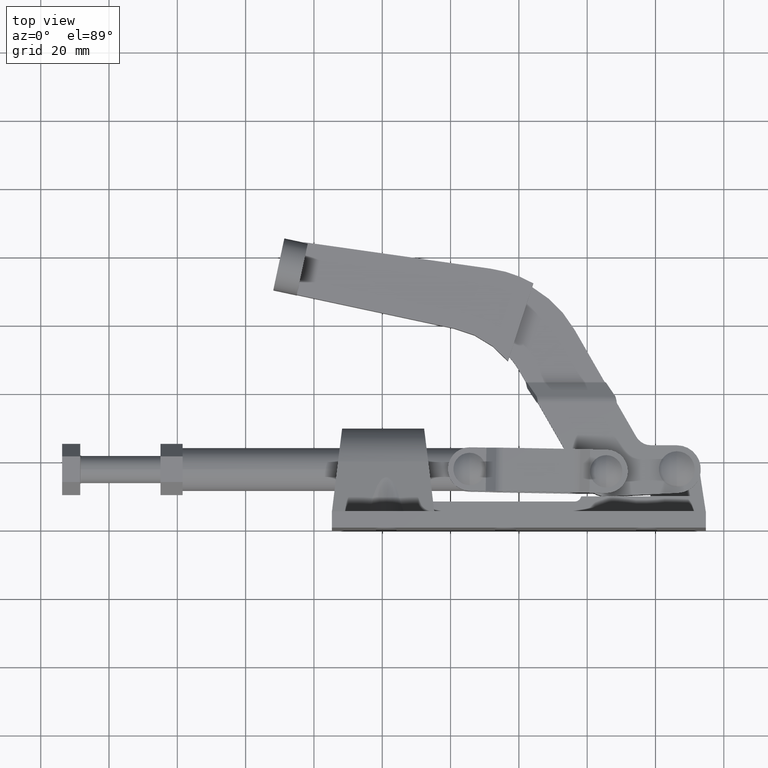
[diagram: clean part render]
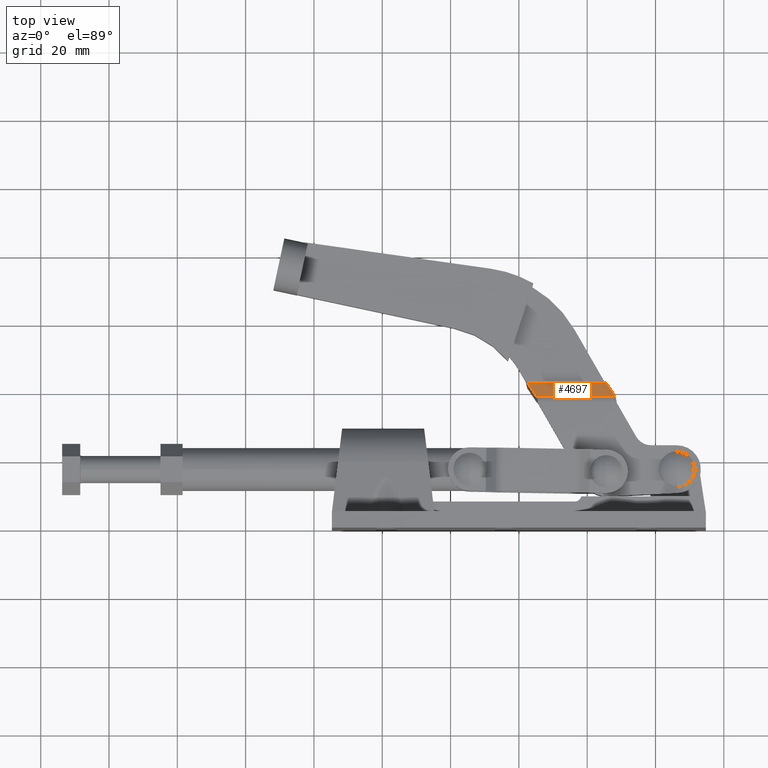
[diagram: same view with one face highlighted and labeled with its STEP entity id]
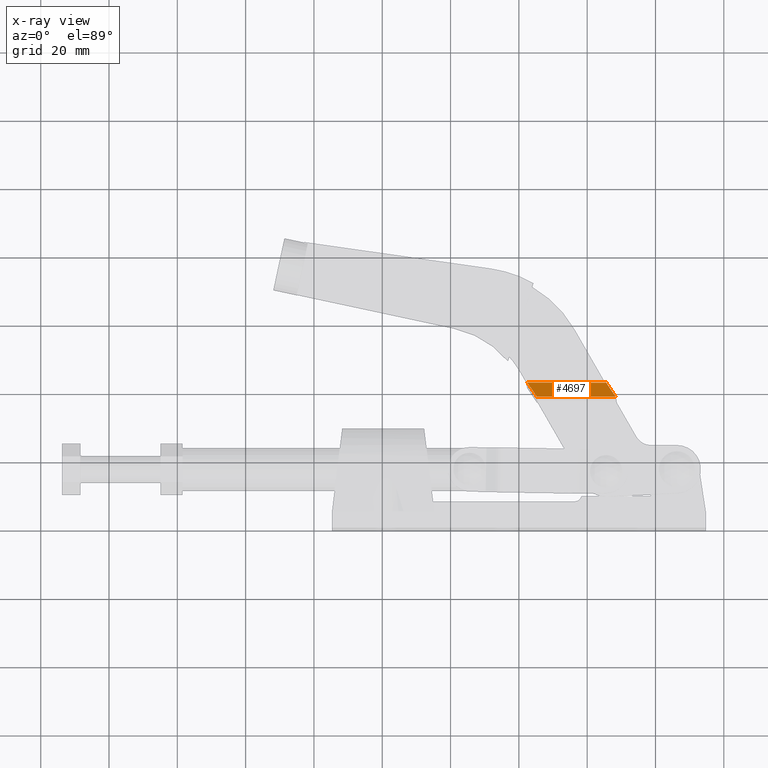
[diagram: x-ray of the same camera — body ghosted, the highlighted face saturated]
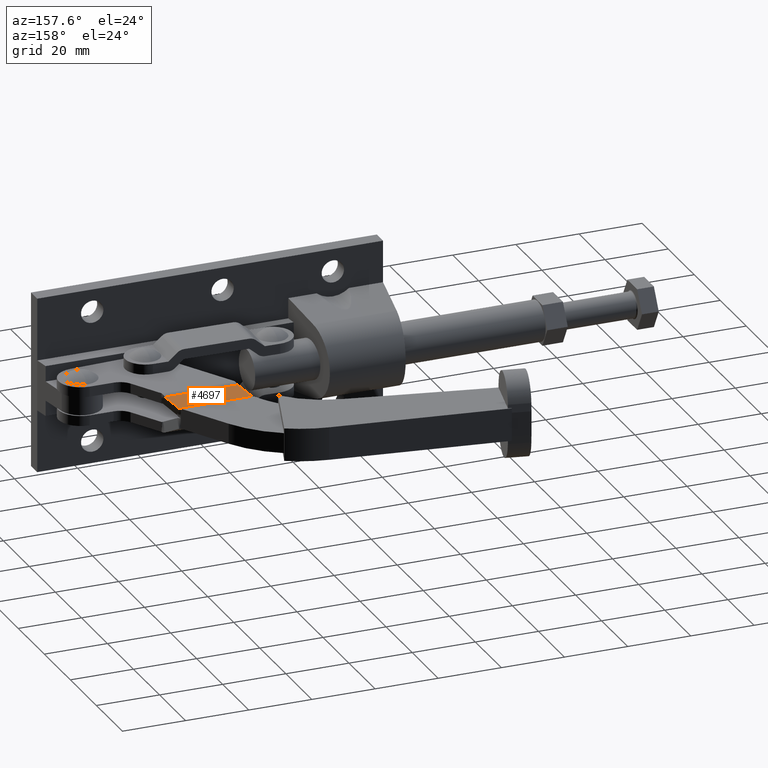
[diagram: same view with one face highlighted and labeled with its STEP entity id]
A machine part, top view. The second image highlights one B-rep face of the part: STEP entity #4697.
The next image is the same camera in x-ray: the body ghosted, the highlighted face saturated — about 0% of this face is hidden behind the body in this view.
A second angle (auxiliary view) of the same face is appended — the face is thin or edge-on in the first view.
In plain terms, the highlighted planar face has unit normal (0.0007, 0.5086, 0.861).
Its self-contained STEP definition (entity closure, byte-faithful):
#140 = ORIENTED_EDGE ( 'NONE', *, *, #3834, .T. ) ;
#195 = LINE ( 'NONE', #7251, #5569 ) ;
#242 = CARTESIAN_POINT ( 'NONE',  ( 25.55049305995667900, 42.86275912582235700, 3.344495772235011300 ) ) ;
#323 = CARTESIAN_POINT ( 'NONE',  ( 25.56429247010804700, 20.79485744783749400, 16.37980344727344900 ) ) ;
#1010 = DIRECTION ( 'NONE',  ( 0.9999991443707730900, -0.001308150496584342100, -1.606516978271331900E-016 ) ) ;
#1295 = CARTESIAN_POINT ( 'NONE',  ( 28.28804139920595900, 38.76865676254559600, 5.760731242956106600 ) ) ;
#1415 = ORIENTED_EDGE ( 'NONE', *, *, #7447, .T. ) ;
#1635 = LINE ( 'NONE', #4389, #8822 ) ;
#2067 = EDGE_CURVE ( 'NONE', #7207, #2077, #7969, .T. ) ;
#2077 = VERTEX_POINT ( 'NONE', #5231 ) ;
#2765 = AXIS2_PLACEMENT_3D ( 'NONE', #323, #5217, #1010 ) ;
#3622 = VERTEX_POINT ( 'NONE', #8955 ) ;
#3834 = EDGE_CURVE ( 'NONE', #7207, #4645, #7509, .T. ) ;
#3949 = EDGE_CURVE ( 'NONE', #4645, #3622, #195, .T. ) ;
#4389 = CARTESIAN_POINT ( 'NONE',  ( 19.25566413860767800, 17.76921619845389000, 18.17189828405748700 ) ) ;
#4544 = DIRECTION ( 'NONE',  ( -0.9999991443707729700, 0.001308150496584471100, 8.424538011842918000E-017 ) ) ;
#4645 = VERTEX_POINT ( 'NONE', #242 ) ;
#4697 = ADVANCED_FACE ( 'NONE', ( #8666 ), #8631, .T. ) ;
#5008 = ORIENTED_EDGE ( 'NONE', *, *, #3949, .T. ) ;
#5217 = DIRECTION ( 'NONE',  ( 0.0006653131277354375200, 0.5085902273561889700, 0.8610084424651258700 ) ) ;
#5231 = CARTESIAN_POINT ( 'NONE',  ( 5.194050391531532400, 38.79886720419934700, 5.760731242956103900 ) ) ;
#5569 = VECTOR ( 'NONE', #7934, 1000.000000000000200 ) ;
#5741 = ORIENTED_EDGE ( 'NONE', *, *, #2067, .F. ) ;
#6149 = VECTOR ( 'NONE', #4544, 1000.000000000000200 ) ;
#6732 = EDGE_LOOP ( 'NONE', ( #140, #5008, #1415, #5741 ) ) ;
#7081 = VECTOR ( 'NONE', #7135, 1000.000000000000100 ) ;
#7135 = DIRECTION ( 'NONE',  ( -0.4990241429860920500, 0.7463086212915957000, -0.4404524338709389600 ) ) ;
#7207 = VERTEX_POINT ( 'NONE', #1295 ) ;
#7251 = CARTESIAN_POINT ( 'NONE',  ( 25.59316055833695500, 42.86270331412404700, 3.344495778767422800 ) ) ;
#7304 = CARTESIAN_POINT ( 'NONE',  ( 25.58780954552104000, 38.77218907176146000, 5.760731237120965400 ) ) ;
#7447 = EDGE_CURVE ( 'NONE', #3622, #2077, #1635, .T. ) ;
#7509 = LINE ( 'NONE', #8447, #7081 ) ;
#7934 = DIRECTION ( 'NONE',  ( -0.9999991443707729700, 0.001308150496584341900, 1.606516978271331700E-016 ) ) ;
#7969 = LINE ( 'NONE', #7304, #6149 ) ;
#8447 = CARTESIAN_POINT ( 'NONE',  ( 34.36319817681796000, 29.68304047668253900, 11.12283170151332000 ) ) ;
#8527 = DIRECTION ( 'NONE',  ( 0.4990241429860919300, -0.7463086212915958100, 0.4404524338709390200 ) ) ;
#8631 = PLANE ( 'NONE',  #2765 ) ;
#8666 = FACE_OUTER_BOUND ( 'NONE', #6732, .T. ) ;
#8822 = VECTOR ( 'NONE', #8527, 1000.000000000000000 ) ;
#8955 = CARTESIAN_POINT ( 'NONE',  ( 2.456502052282257600, 42.89296956747610100, 3.344495772235013900 ) ) ;